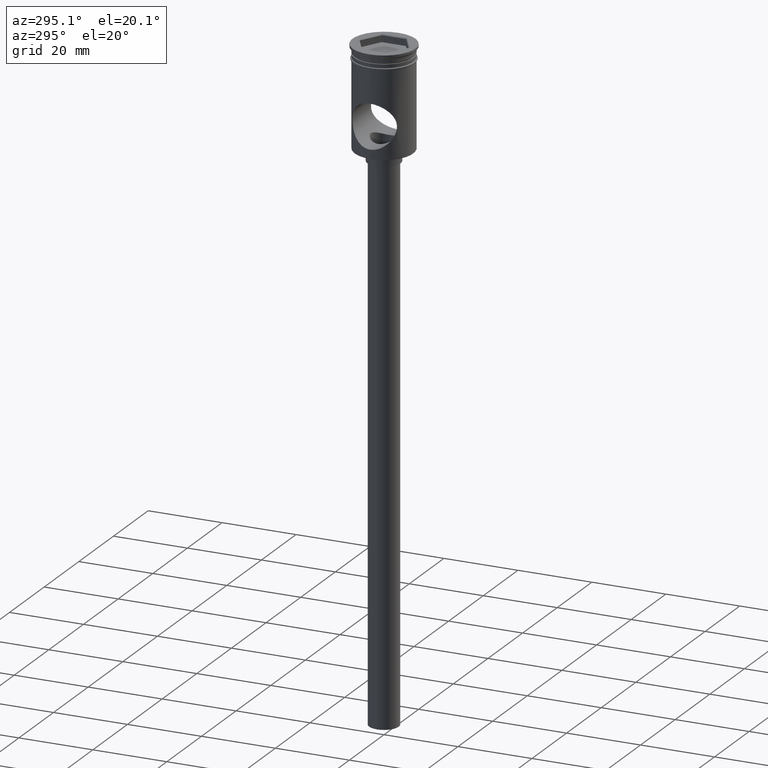
[diagram: clean part render]
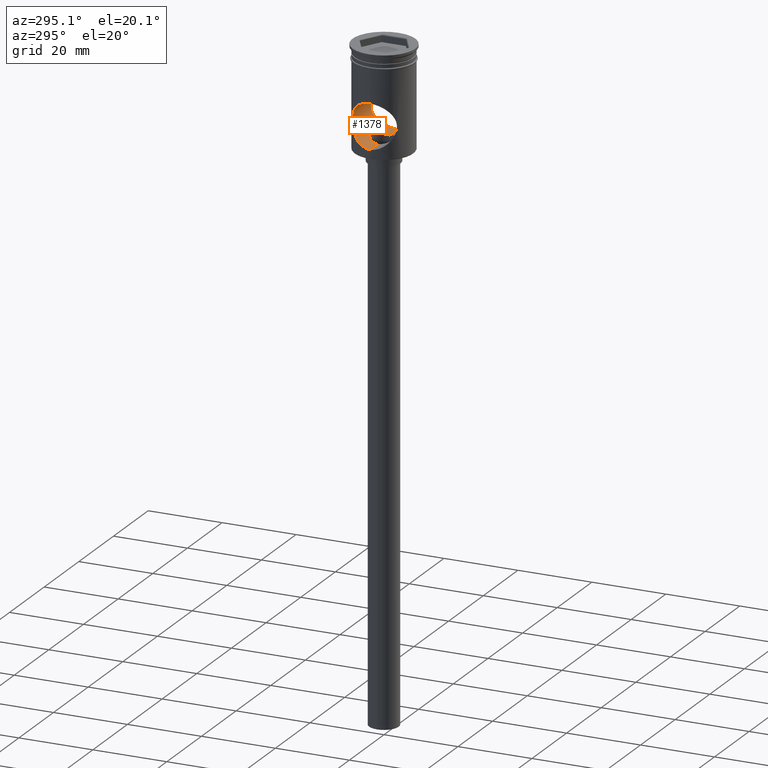
[diagram: same view with one face highlighted and labeled with its STEP entity id]
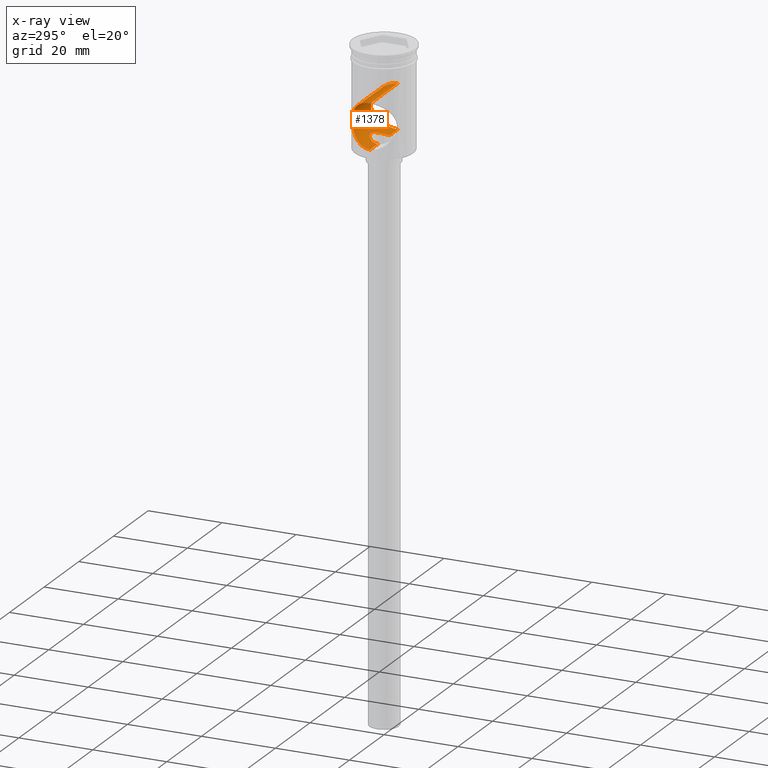
[diagram: x-ray of the same camera — body ghosted, the highlighted face saturated]
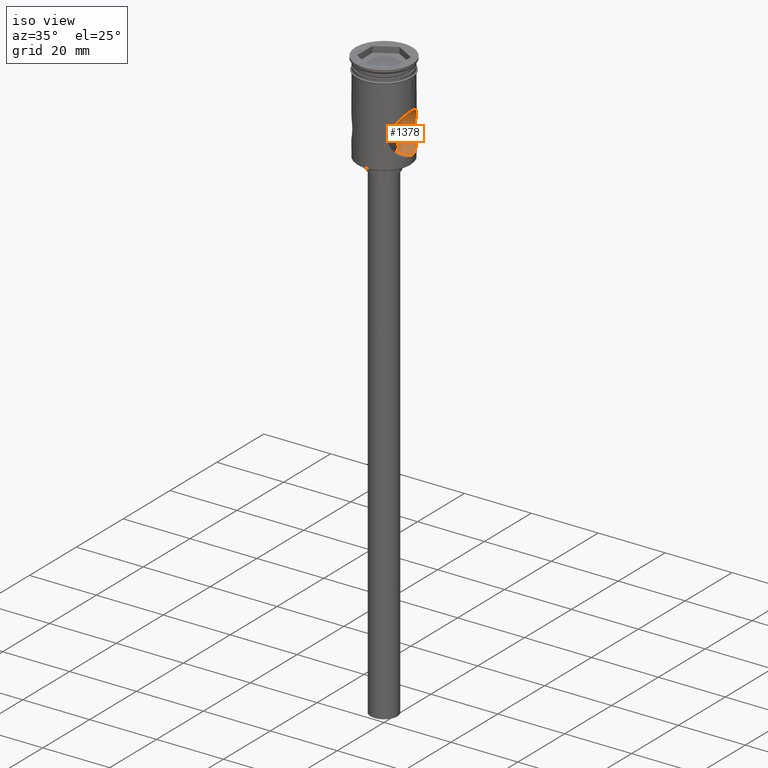
[diagram: same view with one face highlighted and labeled with its STEP entity id]
A machine part, auxiliary view. The second image highlights one B-rep face of the part: STEP entity #1378.
The next image is the same camera in x-ray: the body ghosted, the highlighted face saturated — about 0% of this face is hidden behind the body in this view.
A second angle (iso view) of the same face is appended — the face is thin or edge-on in the first view.
In plain terms, the highlighted cylindrical surface (edge-blend (fillet) strip) has radius 6 mm, axis along (1, -0, -0).
Its self-contained STEP definition (entity closure, byte-faithful):
#25 = CARTESIAN_POINT ( 'NONE',  ( 5.933514355146050967, 5.370016379611009860, -21.70410386792428170 ) ) ;
#35 = CARTESIAN_POINT ( 'NONE',  ( 5.341952933818355120, 5.956343020881682548, -19.82666753736794618 ) ) ;
#42 = CARTESIAN_POINT ( 'NONE',  ( 7.845111153738295151, 1.617379738080571894, -24.79213429196722984 ) ) ;
#50 = CARTESIAN_POINT ( 'NONE',  ( -1.768642399285250910, 3.028580115114635873, -24.18152763628514279 ) ) ;
#53 = CARTESIAN_POINT ( 'NONE',  ( -5.528728542356219577, 5.782767647903219732, -17.38791116192859931 ) ) ;
#60 = CARTESIAN_POINT ( 'NONE',  ( -3.026156002275218082, 1.772769870191083674, -24.73550173276904829 ) ) ;
#62 = CARTESIAN_POINT ( 'NONE',  ( -7.746242821178788596, 2.008647717025523693, -24.65738428818450245 ) ) ;
#65 = CARTESIAN_POINT ( 'NONE',  ( 5.934194063793421847, 5.369288296893337531, -16.29430799600839208 ) ) ;
#67 = CARTESIAN_POINT ( 'NONE',  ( -7.169789722930493880, 3.553058473854127985, -23.83860449815402305 ) ) ;
#80 = CARTESIAN_POINT ( 'NONE',  ( 6.428305707969257377, 4.769535948342530141, -15.34044057477574263 ) ) ;
#132 = DIRECTION ( 'NONE',  ( 1.000000000000000000, -0.000000000000000000, -0.000000000000000000 ) ) ;
#134 = CARTESIAN_POINT ( 'NONE',  ( 3.500000000000000000, -2.108341209729884992E-22, -25.00000000000000000 ) ) ;
#141 = CARTESIAN_POINT ( 'NONE',  ( 7.390068150002869096, 3.069273339745732798, -24.15922233971244637 ) ) ;
#147 = CARTESIAN_POINT ( 'NONE',  ( -2.631105297566998846, 2.318988753383997459, -24.53648073289508247 ) ) ;
#157 = CARTESIAN_POINT ( 'NONE',  ( 1.569451499917220882, 3.136663641457791751, -24.11589117760350831 ) ) ;
#158 = CARTESIAN_POINT ( 'NONE',  ( -6.428408221799558397, 4.769379950103072474, -22.65971221525529344 ) ) ;
#161 = CARTESIAN_POINT ( 'NONE',  ( 5.385705311345802215, 5.915896059439944565, -17.97877459268462985 ) ) ;
#165 = CARTESIAN_POINT ( 'NONE',  ( -5.519437917285256567, 5.792285672141820108, -20.61683396324643169 ) ) ;
#170 = CARTESIAN_POINT ( 'NONE',  ( -5.291471813663452650, 6.000027170513403618, -18.79430872448704548 ) ) ;
#178 = CARTESIAN_POINT ( 'NONE',  ( 8.000000000000005329, 0.4110175701281992278, -13.00000000000000000 ) ) ;
#193 = CARTESIAN_POINT ( 'NONE',  ( 5.474412988877314312, 5.833905236971784980, -17.58356884929881048 ) ) ;
#218 = FACE_OUTER_BOUND ( 'NONE', #723, .T. ) ;
#232 = CARTESIAN_POINT ( 'NONE',  ( -7.875112291323477898, 1.422312626392037371, -13.16749109191733957 ) ) ;
#268 = CARTESIAN_POINT ( 'NONE',  ( 7.522790365168889437, 2.727851025529601348, -24.34760159016909142 ) ) ;
#272 = CARTESIAN_POINT ( 'NONE',  ( -7.748015674478848425, 2.001785621332211385, -13.34018995724741607 ) ) ;
#276 = CARTESIAN_POINT ( 'NONE',  ( -3.383135229272480782, 0.9262607609028873368, -24.93246770836852733 ) ) ;
#285 = CARTESIAN_POINT ( 'NONE',  ( 7.753317466694376492, 2.007594612796118838, -24.66794618566808239 ) ) ;
#289 = CARTESIAN_POINT ( 'NONE',  ( -5.717670742267800144, 5.596336919971244939, -16.82796284348983917 ) ) ;
#292 = CARTESIAN_POINT ( 'NONE',  ( -3.134672115018699134, 1.574015609628243828, -24.79400781499341377 ) ) ;
#298 = CARTESIAN_POINT ( 'NONE',  ( 0.9262661532289678812, 3.383158878910440759, -23.95554440251614992 ) ) ;
#315 = CARTESIAN_POINT ( 'NONE',  ( 7.875627092851996913, 1.419784017982118174, -13.16679506876979033 ) ) ;
#342 = CARTESIAN_POINT ( 'NONE',  ( -7.991997215772791208, 0.4127757007396791189, -13.01065792661720621 ) ) ;
#373 = CARTESIAN_POINT ( 'NONE',  ( -8.500000000000000000, 7.347880794884117764E-16, -13.00000000000000533 ) ) ;
#382 = LINE ( 'NONE', #373, #557 ) ;
#384 = CARTESIAN_POINT ( 'NONE',  ( -0.2353038143285304806, 3.500014887040556300, -23.87338648075757774 ) ) ;
#390 = CARTESIAN_POINT ( 'NONE',  ( 3.135338133946652395, 1.572308161819749861, -24.79437849989724185 ) ) ;
#391 = CARTESIAN_POINT ( 'NONE',  ( -7.935826362832939296, 1.031097151778473719, -24.91423007022369518 ) ) ;
#396 = CARTESIAN_POINT ( 'NONE',  ( 5.527830583457348013, 5.783619756404971390, -20.60895157510370268 ) ) ;
#405 = CARTESIAN_POINT ( 'NONE',  ( 1.766353511662860365, 3.029854674022863570, -24.18076299379187333 ) ) ;
#408 = CARTESIAN_POINT ( 'NONE',  ( -7.999999999999996447, 0.000000000000000000, -25.00000000000000000 ) ) ;
#412 = CARTESIAN_POINT ( 'NONE',  ( -3.314820728402936734, 1.147021336584201023, -24.89341952969400040 ) ) ;
#418 = CARTESIAN_POINT ( 'NONE',  ( 7.837185563733797267, 1.617777997116385258, -13.21872241145037563 ) ) ;
#420 = CARTESIAN_POINT ( 'NONE',  ( -5.386132118162890059, 5.915506229595402843, -17.97664524532638453 ) ) ;
#428 = CARTESIAN_POINT ( 'NONE',  ( 5.717260744181801968, 5.596776624407745260, -16.82891779856496584 ) ) ;
#448 = VECTOR ( 'NONE', #132, 1000.000000000000000 ) ;
#452 = DIRECTION ( 'NONE',  ( 1.000000000000000000, -0.000000000000000000, -0.000000000000000000 ) ) ;
#475 = B_SPLINE_CURVE_WITH_KNOTS ( 'NONE', 3,
 ( #876, #1342, #1356, #42, #285, #768, #268, #141, #965, #758, #619, #525, #1336, #749, #25, #1436, #1450, #396, #1091, #35, #1224, #509, #973, #1217, #161, #193, #899, #1478, #428, #65, #1383, #80, #893, #541, #667, #907, #1493, #547, #1372, #418, #315, #785, #178, #1037 ),
 .UNSPECIFIED., .F., .F.,
 ( 4, 2, 2, 2, 2, 2, 2, 2, 2, 2, 2, 2, 2, 2, 2, 2, 2, 2, 2, 2, 2, 4 ),
 ( 0.000000000000000000, 0.001228223836357238098, 0.002456447672714476196, 0.003070559590893096654, 0.003684671509071716679, 0.004912895345428957596, 0.006141119181786197645, 0.007369343018143437694, 0.007983454936322062490, 0.008597566854500688152, 0.009825790690857941212, 0.01043990260903657034, 0.01105401452721520121, 0.01166812644539383034, 0.01228223836357246121, 0.01351046219992971080, 0.01473868603628695692, 0.01596690987264420825, 0.01719513370900145610, 0.01780924562718008350, 0.01842335754535870743, 0.01965158138171595528 ),
 .UNSPECIFIED. ) ;
#498 = VERTEX_POINT ( 'NONE', #842 ) ;
#501 = CARTESIAN_POINT ( 'NONE',  ( 1.149861020850274640, 3.313556464429847193, -24.00313350788880840 ) ) ;
#509 = CARTESIAN_POINT ( 'NONE',  ( 5.291499639625487639, 6.000002630321015218, -18.79521987294451435 ) ) ;
#514 = CARTESIAN_POINT ( 'NONE',  ( -6.096832542624039064, 5.181052271612227145, -22.03201423696314265 ) ) ;
#525 = CARTESIAN_POINT ( 'NONE',  ( 6.600129246405443517, 4.531693863514761667, -22.95038707538193634 ) ) ;
#529 = CARTESIAN_POINT ( 'NONE',  ( -6.598787025335902889, 4.533655066149032464, -22.94815787054485412 ) ) ;
#535 = CARTESIAN_POINT ( 'NONE',  ( -3.500000000000000000, 0.000000000000000000, -25.00000000000000000 ) ) ;
#538 = CARTESIAN_POINT ( 'NONE',  ( -7.092607887154919410, 3.704399776580871606, -23.72372303530257298 ) ) ;
#541 = CARTESIAN_POINT ( 'NONE',  ( 6.935409427810199645, 3.999736926290286210, -14.51184028921589508 ) ) ;
#543 = CARTESIAN_POINT ( 'NONE',  ( -6.178944471944528338, 5.083158423289838801, -22.19321469611284314 ) ) ;
#547 = CARTESIAN_POINT ( 'NONE',  ( 7.697512327894634687, 2.187332674909133967, -13.40941737064048489 ) ) ;
#550 = CYLINDRICAL_SURFACE ( 'NONE', #1409, 5.999999999999998224 ) ;
#557 = VECTOR ( 'NONE', #839, 1000.000000000000000 ) ;
#570 = EDGE_CURVE ( 'NONE', #1024, #806, #610, .T. ) ;
#584 = ORIENTED_EDGE ( 'NONE', *, *, #593, .T. ) ;
#588 = CARTESIAN_POINT ( 'NONE',  ( -7.999999999999996447, 9.797174356432676922E-16, -13.00000000000000533 ) ) ;
#593 = EDGE_CURVE ( 'NONE', #779, #498, #475, .T. ) ;
#610 = B_SPLINE_CURVE_WITH_KNOTS ( 'NONE', 3,
 ( #134, #614, #1081, #873, #1206, #390, #742, #634, #988, #1108, #1350, #405, #157, #501, #298, #642, #651, #384, #1085, #1116, #1466, #852, #50, #1444, #1100, #147, #1460, #60, #292, #412, #276, #1330, #858, #535 ),
 .UNSPECIFIED., .F., .F.,
 ( 4, 2, 2, 2, 2, 2, 2, 2, 2, 2, 2, 2, 2, 2, 2, 2, 4 ),
 ( 0.01121048830071692468, 0.01190987576431096380, 0.01260926322790500292, 0.01330865069149904031, 0.01400803815509307944, 0.01470742561868711856, 0.01540681308228115595, 0.01610620054587519334, 0.01680558800946923420, 0.01750497547306327159, 0.01820436293665730898, 0.01890375040025134984, 0.01960313786384538376, 0.02030252532743942462, 0.02100191279103346201, 0.02170130025462749940, 0.02240068771822153679 ),
 .UNSPECIFIED. ) ;
#614 = CARTESIAN_POINT ( 'NONE',  ( 3.500000000000001332, 0.2366669585931311937, -25.00000000000001421 ) ) ;
#616 = CARTESIAN_POINT ( 'NONE',  ( -6.092548161367386861, 5.191587824295140763, -15.96869401757640716 ) ) ;
#619 = CARTESIAN_POINT ( 'NONE',  ( 6.933994888437764459, 4.002208169122734027, -23.48599343389724581 ) ) ;
#625 = CARTESIAN_POINT ( 'NONE',  ( -8.500000000000000000, 0.000000000000000000, -25.00000000000000000 ) ) ;
#628 = CARTESIAN_POINT ( 'NONE',  ( -6.932510933914958429, 3.995992554649490547, -23.47975228357175581 ) ) ;
#634 = CARTESIAN_POINT ( 'NONE',  ( 2.771774067289819676, 2.149146754921005709, -24.60542368950273939 ) ) ;
#638 = CARTESIAN_POINT ( 'NONE',  ( -7.524109323248031167, 2.744670825570129757, -24.35015039146814786 ) ) ;
#642 = CARTESIAN_POINT ( 'NONE',  ( 0.4720019948712610436, 3.475765685918096981, -23.89103641591984939 ) ) ;
#645 = CARTESIAN_POINT ( 'NONE',  ( -5.643916026891298898, 5.673596022587067189, -20.98979656833889251 ) ) ;
#651 = CARTESIAN_POINT ( 'NONE',  ( 0.2357464773442009831, 3.499985098962977492, -23.87340787410344589 ) ) ;
#667 = CARTESIAN_POINT ( 'NONE',  ( 7.095827365271405895, 3.710952672189014923, -14.26968452820924682 ) ) ;
#710 = CARTESIAN_POINT ( 'NONE',  ( -7.526744538711455768, 2.737435864263675800, -13.64615235571891283 ) ) ;
#723 = EDGE_LOOP ( 'NONE', ( #1136, #1504, #1521, #732, #861, #584 ) ) ;
#732 = ORIENTED_EDGE ( 'NONE', *, *, #570, .F. ) ;
#733 = EDGE_CURVE ( 'NONE', #1024, #779, #1161, .T. ) ;
#742 = CARTESIAN_POINT ( 'NONE',  ( 3.026236498576297507, 1.772979387633287551, -24.73551659434906114 ) ) ;
#744 = CARTESIAN_POINT ( 'NONE',  ( -7.696444758544893183, 2.191140728972409857, -13.41088448561661650 ) ) ;
#749 = CARTESIAN_POINT ( 'NONE',  ( 6.094205644570493519, 5.189600670481776312, -22.03454661334871290 ) ) ;
#753 = CARTESIAN_POINT ( 'NONE',  ( -5.340955530264040796, 5.957261304845339112, -19.82204812401646876 ) ) ;
#758 = CARTESIAN_POINT ( 'NONE',  ( 7.095043372362062506, 3.712647680833710329, -23.72917063698660911 ) ) ;
#760 = CARTESIAN_POINT ( 'NONE',  ( -5.650483228049789197, 5.663857365279294953, -17.01003722717182498 ) ) ;
#765 = CARTESIAN_POINT ( 'NONE',  ( -5.932300773519818549, 5.371293148560216224, -16.29886334358921118 ) ) ;
#768 = CARTESIAN_POINT ( 'NONE',  ( 7.584438918382732986, 2.551936178765121799, -24.43384157505064636 ) ) ;
#779 = VERTEX_POINT ( 'NONE', #1401 ) ;
#781 = CARTESIAN_POINT ( 'NONE',  ( -5.303887827319022641, 5.989138807782576457, -18.58493257538529875 ) ) ;
#785 = CARTESIAN_POINT ( 'NONE',  ( 7.968510204580123713, 0.8173127755210328749, -13.04179007278580293 ) ) ;
#806 = VERTEX_POINT ( 'NONE', #1396 ) ;
#818 = CARTESIAN_POINT ( 'NONE',  ( -8.000000000000005329, 0.2050786897151790633, -13.00000000000000355 ) ) ;
#824 = VERTEX_POINT ( 'NONE', #939 ) ;
#837 = EDGE_CURVE ( 'NONE', #1495, #806, #1302, .T. ) ;
#839 = DIRECTION ( 'NONE',  ( 1.000000000000000000, -0.000000000000000000, -0.000000000000000000 ) ) ;
#842 = CARTESIAN_POINT ( 'NONE',  ( 7.999999999999996447, 3.674711311745778243E-24, -13.00000000000000533 ) ) ;
#852 = CARTESIAN_POINT ( 'NONE',  ( -1.567243512988440557, 3.137777252660447491, -24.11520598619427247 ) ) ;
#858 = CARTESIAN_POINT ( 'NONE',  ( -3.500000000000000000, 0.2368218957997934582, -25.00000000000000355 ) ) ;
#861 = ORIENTED_EDGE ( 'NONE', *, *, #733, .T. ) ;
#873 = CARTESIAN_POINT ( 'NONE',  ( 3.383551701639782916, 0.9250650555054604762, -24.93270474490876509 ) ) ;
#876 = CARTESIAN_POINT ( 'NONE',  ( 7.999999999999996447, 0.000000000000000000, -25.00000000000000000 ) ) ;
#885 = CARTESIAN_POINT ( 'NONE',  ( -6.849379830468325991, 4.136484081211206920, -23.35028667483849318 ) ) ;
#893 = CARTESIAN_POINT ( 'NONE',  ( 6.602014270987715427, 4.528930003495660550, -15.04648686704185856 ) ) ;
#899 = CARTESIAN_POINT ( 'NONE',  ( 5.527877811876816594, 5.783575200193208588, -17.39087967744914920 ) ) ;
#907 = CARTESIAN_POINT ( 'NONE',  ( 7.392183792285975663, 3.078563709593460818, -13.83574790663121590 ) ) ;
#920 = DIRECTION ( 'NONE',  ( 0.000000000000000000, 0.000000000000000000, -1.000000000000000000 ) ) ;
#939 = CARTESIAN_POINT ( 'NONE',  ( -7.999999999999996447, 9.797174356432676922E-16, -13.00000000000000533 ) ) ;
#945 = CARTESIAN_POINT ( 'NONE',  ( -8.500000000000000000, 0.000000000000000000, -25.00000000000000000 ) ) ;
#965 = CARTESIAN_POINT ( 'NONE',  ( 7.318622431870950074, 3.235523761949524069, -24.05653912422262408 ) ) ;
#973 = CARTESIAN_POINT ( 'NONE',  ( 5.303431297491207452, 5.989541423528398134, -18.59082079987659952 ) ) ;
#975 = CARTESIAN_POINT ( 'NONE',  ( -7.694334963991131815, 2.198537974230715175, -24.58621182590502485 ) ) ;
#983 = CARTESIAN_POINT ( 'NONE',  ( -5.937193840094636244, 5.363245192895813140, -21.69666719771004892 ) ) ;
#988 = CARTESIAN_POINT ( 'NONE',  ( 2.629024641697017550, 2.321219337548152684, -24.53551150972801409 ) ) ;
#992 = CARTESIAN_POINT ( 'NONE',  ( -7.390764062597866335, 3.081727328898060225, -24.16219223809560290 ) ) ;
#995 = CARTESIAN_POINT ( 'NONE',  ( 3.500000000000000000, -2.108341209729884992E-22, -25.00000000000000000 ) ) ;
#1024 = VERTEX_POINT ( 'NONE', #995 ) ;
#1035 = EDGE_CURVE ( 'NONE', #824, #498, #382, .T. ) ;
#1037 = CARTESIAN_POINT ( 'NONE',  ( 7.999999999999996447, 3.674711311745778243E-24, -13.00000000000000533 ) ) ;
#1044 = CARTESIAN_POINT ( 'NONE',  ( -6.932348065000020654, 4.004981294134720926, -14.51657531287133551 ) ) ;
#1053 = CARTESIAN_POINT ( 'NONE',  ( -7.837238599853709964, 1.617585761159322510, -13.21864966473142644 ) ) ;
#1081 = CARTESIAN_POINT ( 'NONE',  ( 3.476246681942199324, 0.4689098856631619405, -24.98605500027420234 ) ) ;
#1085 = CARTESIAN_POINT ( 'NONE',  ( -0.4673050939872681053, 3.476502743612691404, -23.89051395622909624 ) ) ;
#1091 = CARTESIAN_POINT ( 'NONE',  ( 5.474514516413027998, 5.833807645266261943, -20.41669993575522923 ) ) ;
#1100 = CARTESIAN_POINT ( 'NONE',  ( -2.313190402579138993, 2.636204484978801332, -24.39265738364839109 ) ) ;
#1104 = CARTESIAN_POINT ( 'NONE',  ( -8.000000000000000000, 0.2076584939606447855, -25.00000000000001066 ) ) ;
#1108 = CARTESIAN_POINT ( 'NONE',  ( 2.312833230261646111, 2.636405171565078476, -24.39252395995453071 ) ) ;
#1110 = CARTESIAN_POINT ( 'NONE',  ( -5.291564416442851915, 5.999945502536777830, -19.41375567364516641 ) ) ;
#1116 = CARTESIAN_POINT ( 'NONE',  ( -0.9246561633932141033, 3.383704531532262028, -23.95517322862745502 ) ) ;
#1119 = CARTESIAN_POINT ( 'NONE',  ( -7.959626168830804538, 0.8288481689406965724, -24.94607871179749026 ) ) ;
#1136 = ORIENTED_EDGE ( 'NONE', *, *, #1035, .F. ) ;
#1161 = LINE ( 'NONE', #945, #448 ) ;
#1198 = DIRECTION ( 'NONE',  ( 1.000000000000000000, -0.000000000000000000, -0.000000000000000000 ) ) ;
#1206 = CARTESIAN_POINT ( 'NONE',  ( 3.313560832754909757, 1.150135982194137929, -24.89272113528705432 ) ) ;
#1214 = EDGE_CURVE ( 'NONE', #824, #1495, #1376, .T. ) ;
#1217 = CARTESIAN_POINT ( 'NONE',  ( 5.350380422783078238, 5.947639811124362907, -18.18292303966837764 ) ) ;
#1224 = CARTESIAN_POINT ( 'NONE',  ( 5.291508588819593406, 5.999994737873667106, -19.40979141361455262 ) ) ;
#1226 = CARTESIAN_POINT ( 'NONE',  ( -5.351298131410346492, 5.946815791029208320, -18.17692857331259404 ) ) ;
#1233 = CARTESIAN_POINT ( 'NONE',  ( -7.873944427309549354, 1.428810887794780049, -24.83093286763472918 ) ) ;
#1293 = CARTESIAN_POINT ( 'NONE',  ( -7.960178332295269499, 0.8233858112076458680, -13.05318252701360215 ) ) ;
#1302 = LINE ( 'NONE', #625, #1387 ) ;
#1310 = CARTESIAN_POINT ( 'NONE',  ( -7.999999999999996447, 0.000000000000000000, -25.00000000000000000 ) ) ;
#1330 = CARTESIAN_POINT ( 'NONE',  ( -3.475642902124270961, 0.4727254950244769161, -24.98570486362111964 ) ) ;
#1331 = CARTESIAN_POINT ( 'NONE',  ( -7.936580320267932365, 1.025211991777383647, -13.08475919831038858 ) ) ;
#1336 = CARTESIAN_POINT ( 'NONE',  ( 6.426683704192725166, 4.771690908225659555, -22.65669169386860204 ) ) ;
#1342 = CARTESIAN_POINT ( 'NONE',  ( 7.999999999999998224, 0.4161879994587696641, -25.00000000000000711 ) ) ;
#1350 = CARTESIAN_POINT ( 'NONE',  ( 2.137644969597408462, 2.780377322921622429, -24.31881814745764459 ) ) ;
#1356 = CARTESIAN_POINT ( 'NONE',  ( 7.967750386662298290, 0.8225813075346128933, -24.95718867133071939 ) ) ;
#1367 = CARTESIAN_POINT ( 'NONE',  ( -5.859839614964069909, 5.447306643968808260, -21.52271597277527704 ) ) ;
#1372 = CARTESIAN_POINT ( 'NONE',  ( 7.748219018226238042, 2.000946089715710308, -13.33991246093565231 ) ) ;
#1376 = B_SPLINE_CURVE_WITH_KNOTS ( 'NONE', 3,
 ( #588, #818, #342, #1293, #1331, #232, #1053, #272, #744, #710, #1390, #1499, #1044, #1511, #1395, #616, #765, #289, #760, #53, #1446, #420, #1226, #781, #170, #1110, #753, #165, #645, #1367, #983, #514, #543, #158, #529, #885, #628, #538, #67, #992, #638, #975, #62, #1463, #1233, #391, #1119, #1468, #1104, #408 ),
 .UNSPECIFIED., .F., .F.,
 ( 4, 2, 2, 2, 2, 2, 2, 2, 2, 2, 2, 2, 2, 2, 2, 2, 2, 2, 2, 2, 2, 2, 2, 2, 4 ),
 ( 0.01965158138171595875, 0.02026440806685870719, 0.02087723475200145562, 0.02149006143714420405, 0.02210288812228695249, 0.02332854149257245283, 0.02455419486285795316, 0.02577984823314345697, 0.02700550160342895384, 0.02761832828857171268, 0.02823115497371446458, 0.02884398165885721996, 0.02945680834399997533, 0.03068246171428548608, 0.03190811508457099682, 0.03252094176971375566, 0.03313376845485650757, 0.03435942182514201831, 0.03497224851028477716, 0.03558507519542753600, 0.03681072856571306062, 0.03742355525085581947, 0.03803638193599857831, 0.03864920862114134409, 0.03926203530628410293 ),
 .UNSPECIFIED. ) ;
#1378 = ADVANCED_FACE ( 'NONE', ( #218 ), #550, .F. ) ;
#1383 = CARTESIAN_POINT ( 'NONE',  ( 6.095265202635740565, 5.188384097884398471, -15.96330462474424650 ) ) ;
#1387 = VECTOR ( 'NONE', #1198, 1000.000000000000000 ) ;
#1390 = CARTESIAN_POINT ( 'NONE',  ( -7.392840448243055640, 3.077268624920922235, -13.83477139314359405 ) ) ;
#1395 = CARTESIAN_POINT ( 'NONE',  ( -6.426120009460147386, 4.772495035090829951, -15.34422494722665498 ) ) ;
#1396 = CARTESIAN_POINT ( 'NONE',  ( -3.500000000000000000, 0.000000000000000000, -25.00000000000000000 ) ) ;
#1401 = CARTESIAN_POINT ( 'NONE',  ( 7.999999999999996447, 0.000000000000000000, -25.00000000000000000 ) ) ;
#1409 = AXIS2_PLACEMENT_3D ( 'NONE', #1481, #452, #920 ) ;
#1436 = CARTESIAN_POINT ( 'NONE',  ( 5.717181671610946481, 5.596851870810901630, -21.17084374095739463 ) ) ;
#1444 = CARTESIAN_POINT ( 'NONE',  ( -2.141056226006084806, 2.777817792314293044, -24.32017428962215533 ) ) ;
#1446 = CARTESIAN_POINT ( 'NONE',  ( -5.474655730134190712, 5.833676180865436933, -17.58271699258815346 ) ) ;
#1450 = CARTESIAN_POINT ( 'NONE',  ( 5.648998666191807239, 5.665331633315698667, -20.98569890523691583 ) ) ;
#1460 = CARTESIAN_POINT ( 'NONE',  ( -2.775050194668922110, 2.144628074942510398, -24.60707263725220528 ) ) ;
#1463 = CARTESIAN_POINT ( 'NONE',  ( -7.835858405065169840, 1.624274161447295306, -24.77948060674688691 ) ) ;
#1466 = CARTESIAN_POINT ( 'NONE',  ( -1.147272702036858494, 3.314462801643540235, -24.00253082999319432 ) ) ;
#1468 = CARTESIAN_POINT ( 'NONE',  ( -7.991786201921672550, 0.4171226887462312072, -24.98906086098487123 ) ) ;
#1478 = CARTESIAN_POINT ( 'NONE',  ( 5.649101405964834122, 5.665229783906036154, -17.01400357395085550 ) ) ;
#1481 = CARTESIAN_POINT ( 'NONE',  ( -8.500000000000000000, 0.000000000000000000, -19.00000000000000355 ) ) ;
#1493 = CARTESIAN_POINT ( 'NONE',  ( 7.528683465599922187, 2.731923562265712313, -13.64343887222187135 ) ) ;
#1495 = VERTEX_POINT ( 'NONE', #1310 ) ;
#1499 = CARTESIAN_POINT ( 'NONE',  ( -7.094299755750172132, 3.714105956844027556, -14.27193636968089585 ) ) ;
#1504 = ORIENTED_EDGE ( 'NONE', *, *, #1214, .T. ) ;
#1511 = CARTESIAN_POINT ( 'NONE',  ( -6.599412474671010109, 4.532668071879429661, -15.05083651367930742 ) ) ;
#1521 = ORIENTED_EDGE ( 'NONE', *, *, #837, .T. ) ;